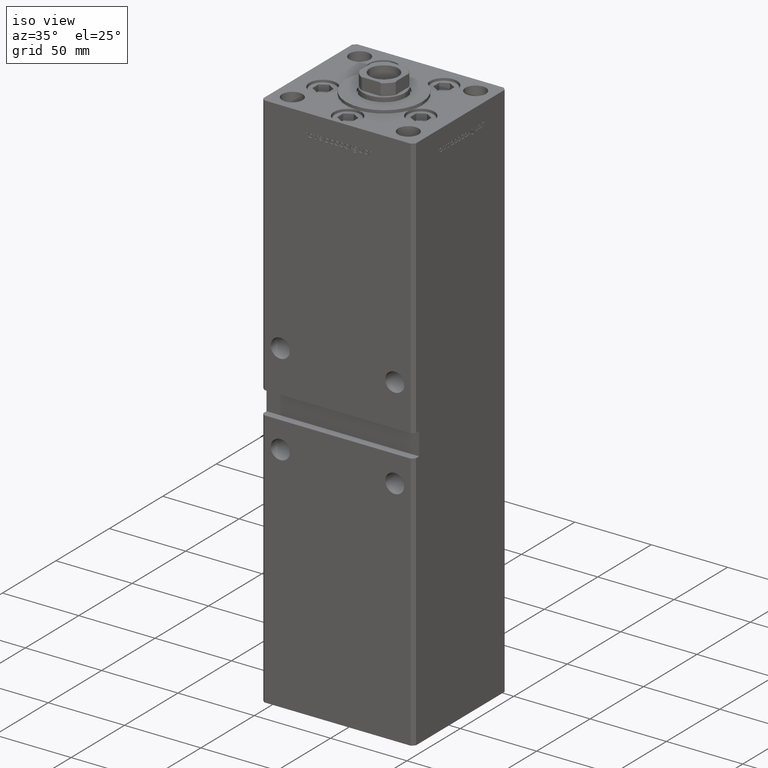
[diagram: clean part render]
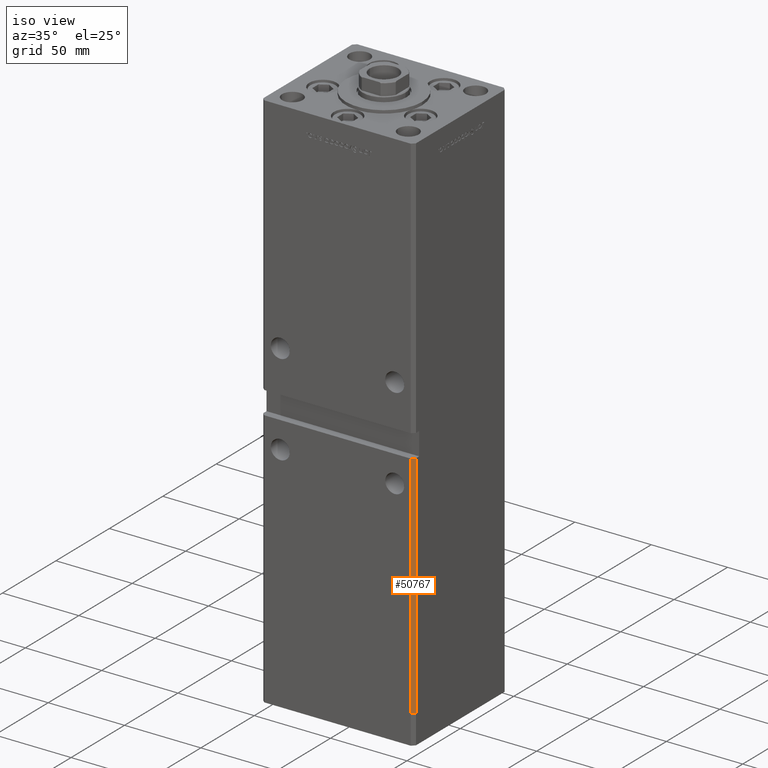
[diagram: same view with one face highlighted and labeled with its STEP entity id]
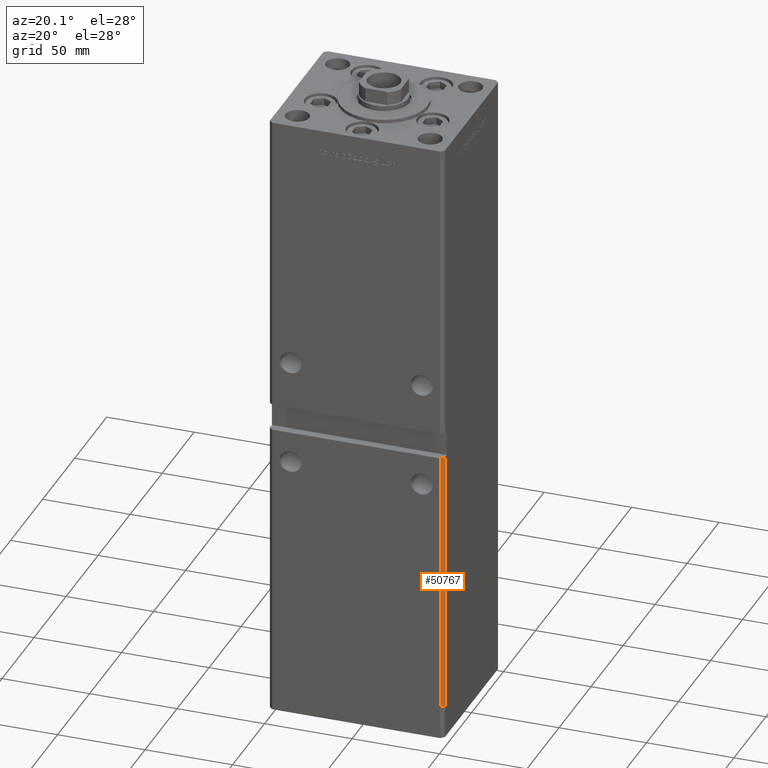
[diagram: same view with one face highlighted and labeled with its STEP entity id]
A machine part, iso view. The second image highlights one B-rep face of the part: STEP entity #50767.
A second angle (auxiliary view) of the same face is appended — the face is thin or edge-on in the first view.
In plain terms, the highlighted planar face has unit normal (0.7071, -0.7071, 0).
Its self-contained STEP definition (entity closure, byte-faithful):
#898 = EDGE_CURVE ( 'NONE', #1438, #2993, #41999, .T. ) ;
#937 = ORIENTED_EDGE ( 'NONE', *, *, #11380, .F. ) ;
#1438 = VERTEX_POINT ( 'NONE', #27009 ) ;
#2993 = VERTEX_POINT ( 'NONE', #38734 ) ;
#5303 = DIRECTION ( 'NONE',  ( 0.7071067811865475727, -0.7071067811865475727, 0.000000000000000000 ) ) ;
#8396 = VECTOR ( 'NONE', #50515, 1000.000000000000114 ) ;
#9070 = FACE_OUTER_BOUND ( 'NONE', #24956, .T. ) ;
#11380 = EDGE_CURVE ( 'NONE', #32626, #2993, #47210, .T. ) ;
#13367 = DIRECTION ( 'NONE',  ( 0.7071067811865474617, 0.7071067811865474617, 0.000000000000000000 ) ) ;
#13984 = CARTESIAN_POINT ( 'NONE',  ( 49.99999999999998579, -41.49999999999999289, 151.0000000000000000 ) ) ;
#15389 = ORIENTED_EDGE ( 'NONE', *, *, #52505, .F. ) ;
#16687 = VECTOR ( 'NONE', #41463, 1000.000000000000000 ) ;
#16761 = CARTESIAN_POINT ( 'NONE',  ( 50.00000000000000000, -41.49999999999999289, 151.0000000000000000 ) ) ;
#18651 = VECTOR ( 'NONE', #33731, 1000.000000000000000 ) ;
#20814 = VERTEX_POINT ( 'NONE', #16761 ) ;
#21951 = DIRECTION ( 'NONE',  ( -0.7071067811865474617, -0.7071067811865474617, 0.000000000000000000 ) ) ;
#23765 = AXIS2_PLACEMENT_3D ( 'NONE', #41837, #5303, #13367 ) ;
#24956 = EDGE_LOOP ( 'NONE', ( #15389, #36786, #937, #36620 ) ) ;
#25133 = CARTESIAN_POINT ( 'NONE',  ( 49.99999999999998579, -41.49999999999999289, 318.5000000000000000 ) ) ;
#27009 = CARTESIAN_POINT ( 'NONE',  ( 47.99999999999995737, -43.50000000000000000, 151.0000000000000000 ) ) ;
#30953 = VECTOR ( 'NONE', #21951, 1000.000000000000114 ) ;
#32626 = VERTEX_POINT ( 'NONE', #48739 ) ;
#33397 = CARTESIAN_POINT ( 'NONE',  ( 47.99999999999998579, -43.50000000000000000, 318.5000000000000000 ) ) ;
#33731 = DIRECTION ( 'NONE',  ( -0.000000000000000000, -0.000000000000000000, -1.000000000000000000 ) ) ;
#34289 = PLANE ( 'NONE',  #23765 ) ;
#35417 = EDGE_CURVE ( 'NONE', #20814, #32626, #45560, .T. ) ;
#36620 = ORIENTED_EDGE ( 'NONE', *, *, #35417, .F. ) ;
#36786 = ORIENTED_EDGE ( 'NONE', *, *, #898, .T. ) ;
#38734 = CARTESIAN_POINT ( 'NONE',  ( 47.99999999999998579, -43.50000000000000000, 0.000000000000000000 ) ) ;
#41463 = DIRECTION ( 'NONE',  ( -0.000000000000000000, -0.000000000000000000, -1.000000000000000000 ) ) ;
#41837 = CARTESIAN_POINT ( 'NONE',  ( 49.99999999999998579, -41.49999999999999289, 318.5000000000000000 ) ) ;
#41999 = LINE ( 'NONE', #33397, #16687 ) ;
#42643 = CARTESIAN_POINT ( 'NONE',  ( 49.99999999999998579, -41.49999999999999289, 0.000000000000000000 ) ) ;
#42982 = LINE ( 'NONE', #13984, #8396 ) ;
#45560 = LINE ( 'NONE', #25133, #18651 ) ;
#47210 = LINE ( 'NONE', #42643, #30953 ) ;
#48739 = CARTESIAN_POINT ( 'NONE',  ( 49.99999999999998579, -41.49999999999999289, 0.000000000000000000 ) ) ;
#50515 = DIRECTION ( 'NONE',  ( 0.7071067811865474617, 0.7071067811865474617, 0.000000000000000000 ) ) ;
#50767 = ADVANCED_FACE ( 'NONE', ( #9070 ), #34289, .T. ) ;
#52505 = EDGE_CURVE ( 'NONE', #1438, #20814, #42982, .T. ) ;